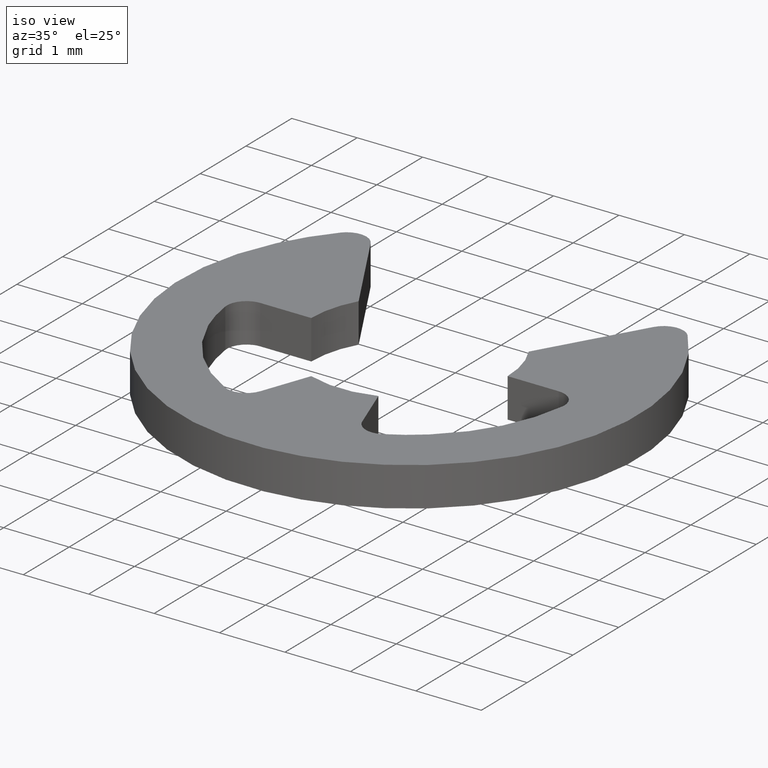
[diagram: clean part render]
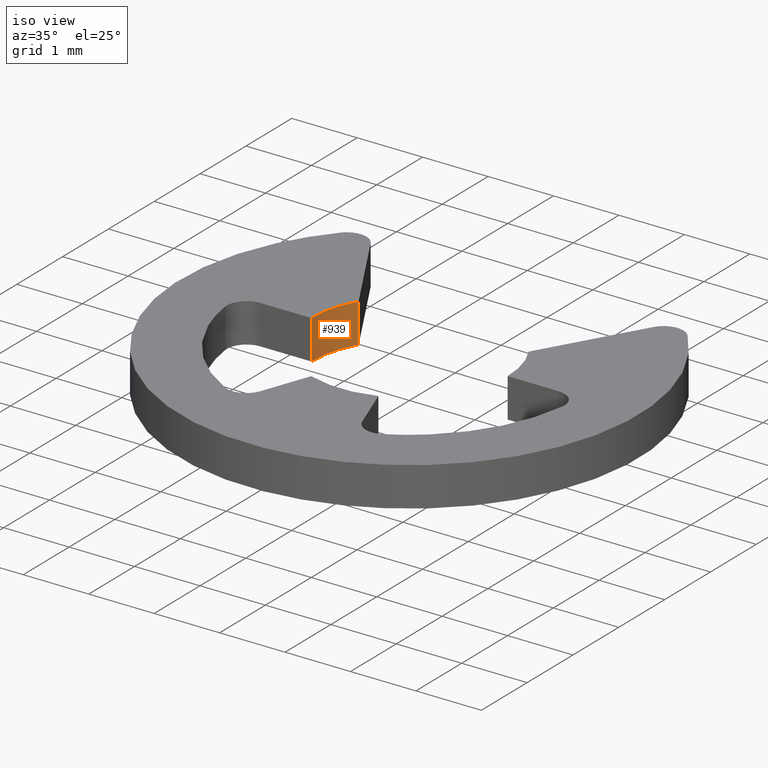
[diagram: same view with one face highlighted and labeled with its STEP entity id]
A machine part, iso view. The second image highlights one B-rep face of the part: STEP entity #939.
In plain terms, the highlighted face is a freeform B-spline surface patch.
Its self-contained STEP definition (entity closure, byte-faithful):
#49=CARTESIAN_POINT('',(-1.500000000000000,0.0,0.0));
#50=VERTEX_POINT('',#49);
#51=CARTESIAN_POINT('',(-1.300001000000000,0.748328999999899,0.0));
#52=VERTEX_POINT('',#51);
#53=CARTESIAN_POINT('',(-1.500000000000000,0.0,0.0));
#54=CARTESIAN_POINT('',(-1.500000000000000,0.400890445406895,0.0));
#55=CARTESIAN_POINT('',(-1.300001000000000,0.748328999999899,0.0));
#63=(BOUNDED_CURVE()B_SPLINE_CURVE(2,(#53,#54,#55),.UNSPECIFIED.,.F.,.U.)CURVE()GEOMETRIC_REPRESENTATION_ITEM()QUASI_UNIFORM_CURVE()RATIONAL_B_SPLINE_CURVE((1.0,0.966092010804248,1.0))REPRESENTATION_ITEM(''));
#64=EDGE_CURVE('',#50,#52,#63,.T.);
#295=CARTESIAN_POINT('',(-1.500000000000000,0.0,0.599990999999855));
#296=VERTEX_POINT('',#295);
#297=CARTESIAN_POINT('',(-1.300001000000000,0.748328999999899,0.599990999999855));
#298=VERTEX_POINT('',#297);
#299=CARTESIAN_POINT('',(-1.500000000000000,0.0,0.599990999999855));
#300=CARTESIAN_POINT('',(-1.500000000000000,0.400890445406895,0.599990999999855));
#301=CARTESIAN_POINT('',(-1.300001000000000,0.748328999999899,0.599990999999855));
#309=(BOUNDED_CURVE()B_SPLINE_CURVE(2,(#299,#300,#301),.UNSPECIFIED.,.F.,.U.)CURVE()GEOMETRIC_REPRESENTATION_ITEM()QUASI_UNIFORM_CURVE()RATIONAL_B_SPLINE_CURVE((1.0,0.966092010804248,1.0))REPRESENTATION_ITEM(''));
#310=EDGE_CURVE('',#296,#298,#309,.T.);
#542=CARTESIAN_POINT('',(-1.500000000000000,0.0,0.599990999999855));
#543=CARTESIAN_POINT('',(-1.500000000000000,0.0,0.0));
#544=QUASI_UNIFORM_CURVE('',1,(#542,#543),.UNSPECIFIED.,.F.,.U.);
#545=EDGE_CURVE('',#296,#50,#544,.T.);
#911=CARTESIAN_POINT('',(-1.300001000000000,0.748328999999899,0.599990999999855));
#912=CARTESIAN_POINT('',(-1.300001000000000,0.748328999999899,0.0));
#913=QUASI_UNIFORM_CURVE('',1,(#911,#912),.UNSPECIFIED.,.F.,.U.);
#914=EDGE_CURVE('',#298,#52,#913,.T.);
#919=CARTESIAN_POINT('',(-1.280374443187752,0.781435400549306,0.614990774999852));
#920=CARTESIAN_POINT('',(-1.280374443187752,0.781435400549306,-0.015374769374996));
#921=CARTESIAN_POINT('',(-1.510933812432339,0.403666075265672,0.614990774999852));
#922=CARTESIAN_POINT('',(-1.510933812432339,0.403666075265672,-0.015374769374996));
#923=CARTESIAN_POINT('',(-1.499499262642640,-0.038755145905761,0.614990774999852));
#924=CARTESIAN_POINT('',(-1.499499262642640,-0.038755145905761,-0.015374769374996));
#932=(BOUNDED_SURFACE()B_SPLINE_SURFACE(1,2,((#919,#921,#923),(#920,#922,#924)),.UNSPECIFIED.,.F.,.F.,.U.)B_SPLINE_SURFACE_WITH_KNOTS((2,2),(3,3),(0.0,1.0),(0.002923479854874,0.915064138740487),.UNSPECIFIED.)GEOMETRIC_REPRESENTATION_ITEM()RATIONAL_B_SPLINE_SURFACE(((0.999714666036641,0.955332352380856,0.992392052540240),(0.999714666036641,0.955332352380856,0.992392052540240)))REPRESENTATION_ITEM('')SURFACE());
#933=ORIENTED_EDGE('',*,*,#64,.T.);
#934=ORIENTED_EDGE('',*,*,#914,.F.);
#935=ORIENTED_EDGE('',*,*,#310,.F.);
#936=ORIENTED_EDGE('',*,*,#545,.T.);
#937=EDGE_LOOP('',(#933,#934,#935,#936));
#938=FACE_OUTER_BOUND('',#937,.T.);
#939=ADVANCED_FACE('',(#938),#932,.F.);